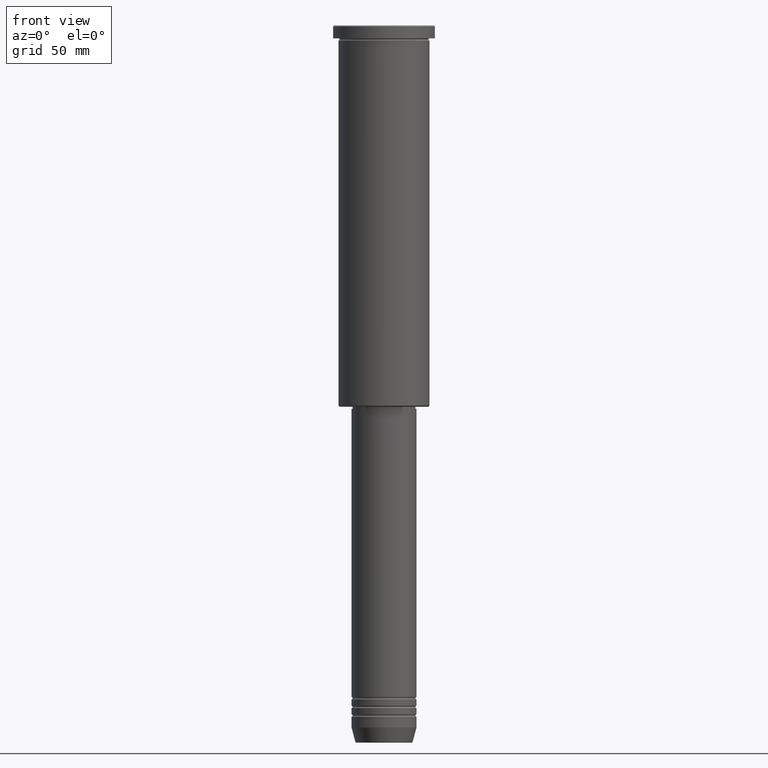
[diagram: clean part render]
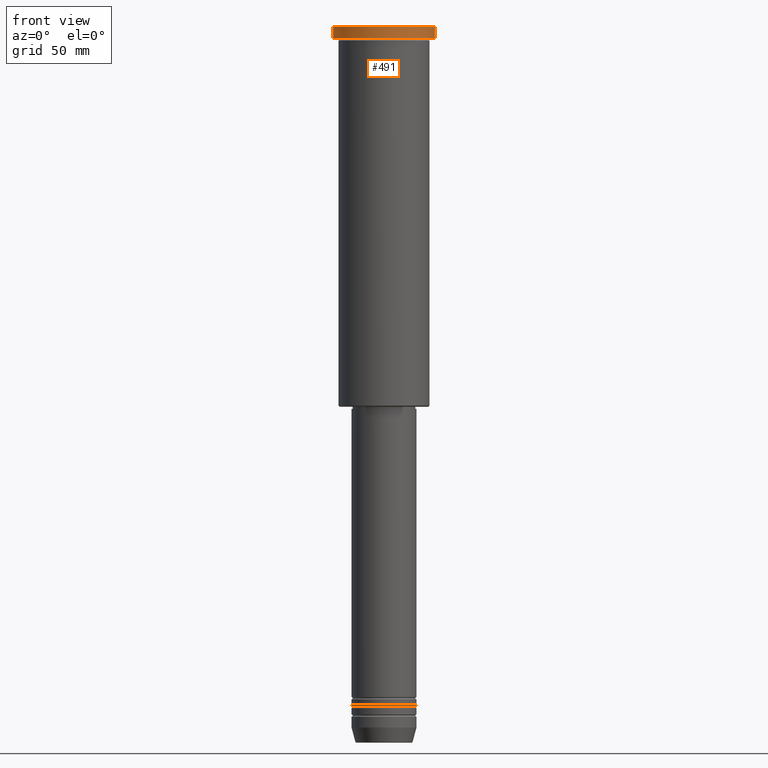
[diagram: same view with one face highlighted and labeled with its STEP entity id]
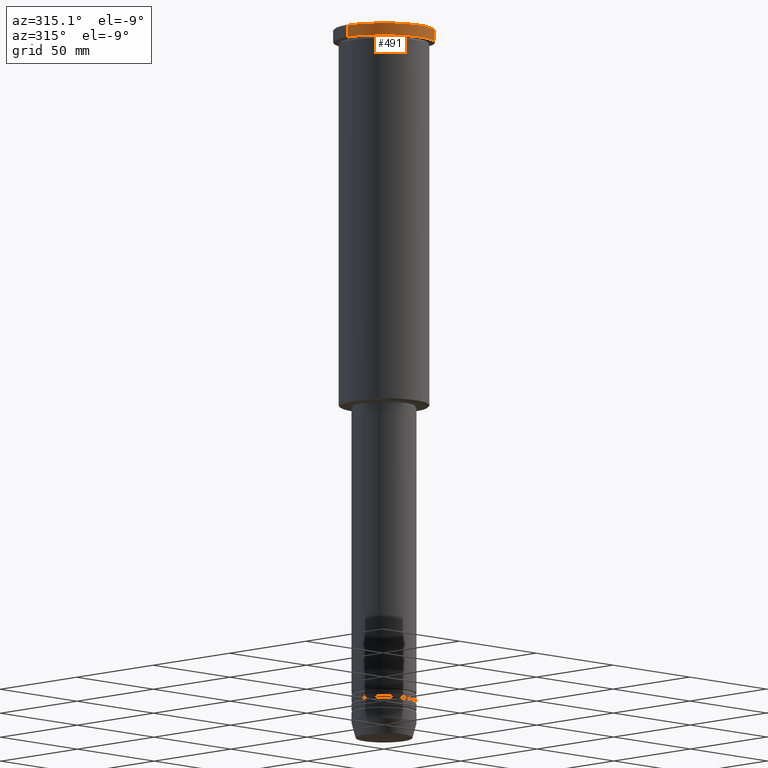
[diagram: same view with one face highlighted and labeled with its STEP entity id]
A machine part, front view. The second image highlights one B-rep face of the part: STEP entity #491.
A second angle (auxiliary view) of the same face is appended — the face is thin or edge-on in the first view.
In plain terms, the highlighted cylindrical surface (partial cylindrical patch) has radius 23.5 mm, axis along (-0, -0, 1).
Its self-contained STEP definition (entity closure, byte-faithful):
#7 = CIRCLE ( 'NONE', #614, 23.50000000000000000 ) ;
#10 = CARTESIAN_POINT ( 'NONE',  ( 23.50000000000000000, 0.000000000000000000, 0.000000000000000000 ) ) ;
#23 = VERTEX_POINT ( 'NONE', #482 ) ;
#62 = ORIENTED_EDGE ( 'NONE', *, *, #154, .F. ) ;
#72 = ORIENTED_EDGE ( 'NONE', *, *, #448, .T. ) ;
#98 = DIRECTION ( 'NONE',  ( -0.000000000000000000, -0.000000000000000000, 1.000000000000000000 ) ) ;
#128 = CARTESIAN_POINT ( 'NONE',  ( -23.50000000000000000, 2.877919977996280320E-15, 0.000000000000000000 ) ) ;
#133 = ORIENTED_EDGE ( 'NONE', *, *, #423, .T. ) ;
#154 = EDGE_CURVE ( 'NONE', #596, #300, #953, .T. ) ;
#197 = AXIS2_PLACEMENT_3D ( 'NONE', #956, #530, #583 ) ;
#243 = DIRECTION ( 'NONE',  ( -0.000000000000000000, -0.000000000000000000, 1.000000000000000000 ) ) ;
#250 = DIRECTION ( 'NONE',  ( 1.000000000000000000, 0.000000000000000000, 0.000000000000000000 ) ) ;
#256 = CARTESIAN_POINT ( 'NONE',  ( 0.000000000000000000, 0.000000000000000000, -5.999999999999993783 ) ) ;
#300 = VERTEX_POINT ( 'NONE', #830 ) ;
#387 = AXIS2_PLACEMENT_3D ( 'NONE', #256, #243, #524 ) ;
#394 = VECTOR ( 'NONE', #98, 1000.000000000000000 ) ;
#423 = EDGE_CURVE ( 'NONE', #23, #300, #7, .T. ) ;
#448 = EDGE_CURVE ( 'NONE', #596, #611, #1018, .T. ) ;
#482 = CARTESIAN_POINT ( 'NONE',  ( 23.50000000000000000, 0.000000000000000000, -0.5000000000000004441 ) ) ;
#491 = ADVANCED_FACE ( 'NONE', ( #1132 ), #1043, .T. ) ;
#496 = DIRECTION ( 'NONE',  ( -0.000000000000000000, -0.000000000000000000, 1.000000000000000000 ) ) ;
#524 = DIRECTION ( 'NONE',  ( 1.000000000000000000, 0.000000000000000000, 0.000000000000000000 ) ) ;
#530 = DIRECTION ( 'NONE',  ( -0.000000000000000000, -0.000000000000000000, 1.000000000000000000 ) ) ;
#583 = DIRECTION ( 'NONE',  ( 1.000000000000000000, 0.000000000000000000, 0.000000000000000000 ) ) ;
#596 = VERTEX_POINT ( 'NONE', #930 ) ;
#611 = VERTEX_POINT ( 'NONE', #1015 ) ;
#614 = AXIS2_PLACEMENT_3D ( 'NONE', #1065, #1069, #250 ) ;
#673 = EDGE_LOOP ( 'NONE', ( #62, #72, #1131, #133 ) ) ;
#722 = VECTOR ( 'NONE', #496, 1000.000000000000000 ) ;
#825 = LINE ( 'NONE', #10, #394 ) ;
#830 = CARTESIAN_POINT ( 'NONE',  ( -23.50000000000000000, 2.877919977996280320E-15, -0.5000000000000004441 ) ) ;
#930 = CARTESIAN_POINT ( 'NONE',  ( -23.50000000000000000, 2.877919977996280320E-15, -5.999999999999993783 ) ) ;
#932 = EDGE_CURVE ( 'NONE', #611, #23, #825, .T. ) ;
#953 = LINE ( 'NONE', #128, #722 ) ;
#956 = CARTESIAN_POINT ( 'NONE',  ( 0.000000000000000000, 0.000000000000000000, 0.000000000000000000 ) ) ;
#1015 = CARTESIAN_POINT ( 'NONE',  ( 23.50000000000000000, 0.000000000000000000, -5.999999999999993783 ) ) ;
#1018 = CIRCLE ( 'NONE', #387, 23.50000000000000000 ) ;
#1043 = CYLINDRICAL_SURFACE ( 'NONE', #197, 23.50000000000000000 ) ;
#1065 = CARTESIAN_POINT ( 'NONE',  ( 0.000000000000000000, 0.000000000000000000, -0.5000000000000004441 ) ) ;
#1069 = DIRECTION ( 'NONE',  ( 0.000000000000000000, 0.000000000000000000, -1.000000000000000000 ) ) ;
#1131 = ORIENTED_EDGE ( 'NONE', *, *, #932, .T. ) ;
#1132 = FACE_OUTER_BOUND ( 'NONE', #673, .T. ) ;